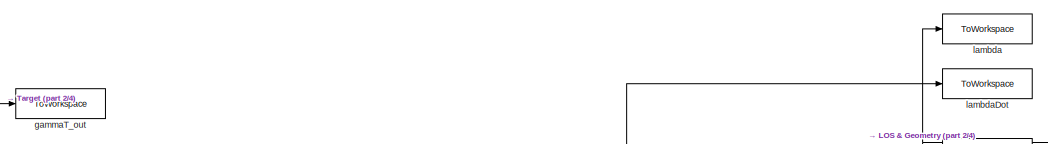
[diagram: root canvas - part 1/4, top center region]
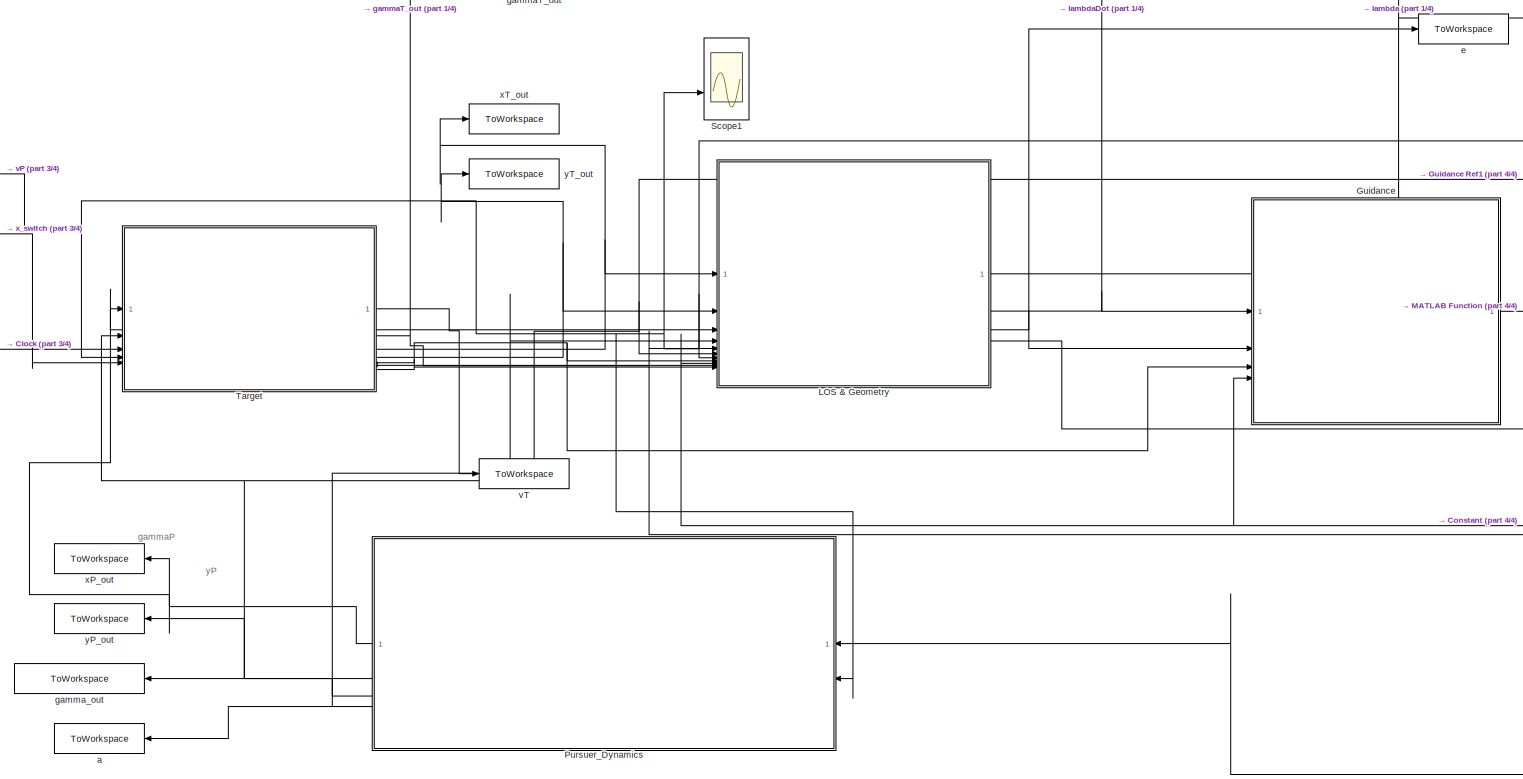
[diagram: root canvas - part 2/4, center side, full height]
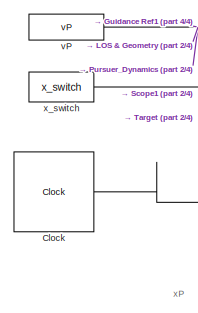
[diagram: root canvas - part 3/4, middle left region]
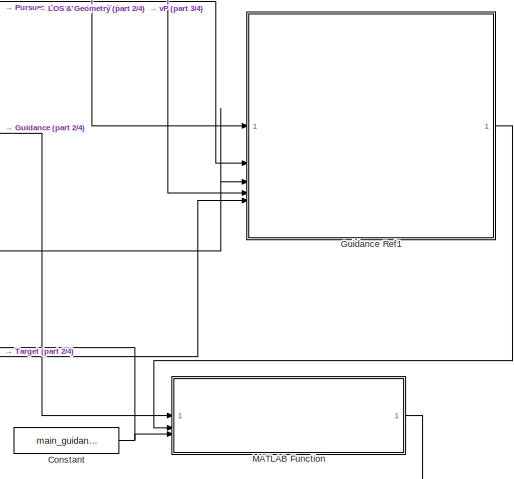
[diagram: root canvas - part 4/4, middle right region]
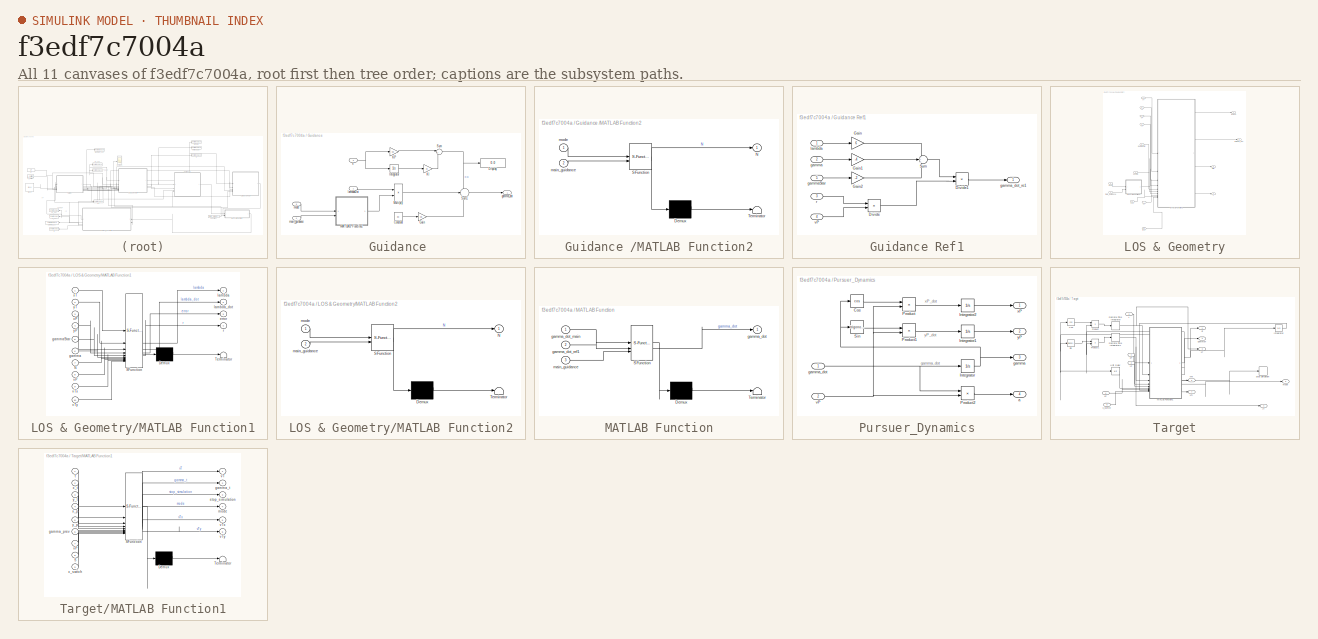
[diagram: thumbnail index - all 11 canvases of the model, root first then tree order]
MODEL slx_f3edf7c7004a
KIND model
CONFIG AbsTol = auto
CONFIG EnableMultiTasking = off
CONFIG FixedStep = 0.01
CONFIG MaxStep = auto
CONFIG MinStep = auto
CONFIG RelTol = 1e-3
CONFIG SampleTimeConstraint = Unconstrained
CONFIG SolverName = ode4
CONFIG StartTime = 0.0
CONFIG StopTime = tf
BLOCK [Clock] Clock
  Decimation = tf
  DisplayTime = on
BLOCK [Constant] Constant
  Value = main_guidance
BLOCK [SubSystem] Guidance 
BLOCK [Constant] Guidance /Constant
  Value = e0
BLOCK [Display] Guidance /Display
  Decimation = 1
BLOCK [Gain] Guidance /Gain
  Gain = Kp
BLOCK [Integrator] Guidance /Integrator
  InitialCondition = e0
BLOCK [Gain] Guidance /KI
  Gain = Ki
BLOCK [Gain] Guidance /KP
  Gain = Kp
BLOCK [SubSystem] Guidance /MATLAB Function2
  ErrorFcn = Stateflow.Translate.translate
  PermitHierarchicalResolution = ExplicitOnly
  SFBlockType = MATLAB Function
  TreatAsAtomicUnit = on
BLOCK [Demux] Guidance /MATLAB Function2/ Demux 
  Outputs = 1
BLOCK [S-Function] Guidance /MATLAB Function2/ SFunction 
  EnableBusSupport = on
  FunctionName = sf_sfun
  PortCounts = [2 2]
  SFcnIsStateOwnerBlock = off
  SFunctionDeploymentMode = off
  Tag = Stateflow S-Function 6
BLOCK [Terminator] Guidance /MATLAB Function2/ Terminator 
BLOCK [Outport] Guidance /MATLAB Function2/N
BLOCK [Inport] Guidance /MATLAB Function2/main_guidance
  Port = 2
BLOCK [Inport] Guidance /MATLAB Function2/mode
BLOCK [Product] Guidance /Multiply
BLOCK [Sum] Guidance /Sum
  Inputs = |++
BLOCK [Sum] Guidance /Sum1
  Inputs = +|+|-
BLOCK [Inport] Guidance /e
  Port = 2
BLOCK [Outport] Guidance /gamma_dot
BLOCK [Inport] Guidance /lambdaDot
BLOCK [Inport] Guidance /main_guidance
  Port = 4
BLOCK [Inport] Guidance /mode
  Port = 3
BLOCK [SubSystem] Guidance Ref1
BLOCK [Product] Guidance Ref1/Divide
  Inputs = */
BLOCK [Product] Guidance Ref1/Divide1
  Inputs = */
BLOCK [Gain] Guidance Ref1/Gain
  Gain = 6
BLOCK [Gain] Guidance Ref1/Gain1
  Gain = -4
BLOCK [Gain] Guidance Ref1/Gain2
  Gain = -2
BLOCK [Sum] Guidance Ref1/Sum
  Inputs = +++
BLOCK [Inport] Guidance Ref1/gamma
  Port = 2
BLOCK [Inport] Guidance Ref1/gammaStar
  Port = 5
BLOCK [Outport] Guidance Ref1/gamma_dot_re1
BLOCK [Inport] Guidance Ref1/lambda
BLOCK [Inport] Guidance Ref1/r
  Port = 3
BLOCK [Inport] Guidance Ref1/vP
  Port = 4
BLOCK [SubSystem] LOS & Geometry
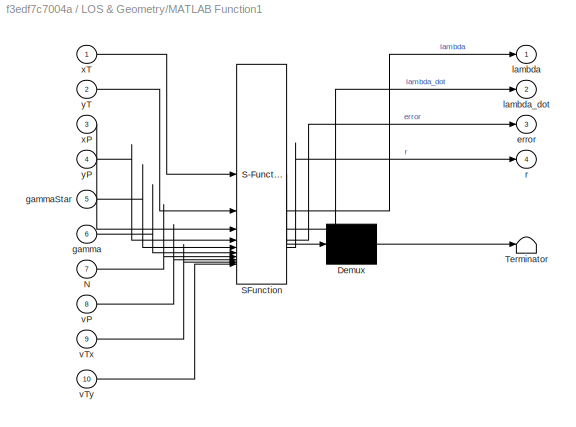
BLOCK [SubSystem] LOS & Geometry/MATLAB Function1
  ErrorFcn = Stateflow.Translate.translate
  PermitHierarchicalResolution = ExplicitOnly
  SFBlockType = MATLAB Function
  TreatAsAtomicUnit = on
BLOCK [Demux] LOS & Geometry/MATLAB Function1/ Demux 
  Outputs = 1
BLOCK [S-Function] LOS & Geometry/MATLAB Function1/ SFunction 
  EnableBusSupport = on
  FunctionName = sf_sfun
  PortCounts = [10 5]
  SFcnIsStateOwnerBlock = off
  SFunctionDeploymentMode = off
  Tag = Stateflow S-Function 1
BLOCK [Terminator] LOS & Geometry/MATLAB Function1/ Terminator 
BLOCK [Inport] LOS & Geometry/MATLAB Function1/N
  Port = 7
BLOCK [Outport] LOS & Geometry/MATLAB Function1/error
  Port = 3
BLOCK [Inport] LOS & Geometry/MATLAB Function1/gamma
  Port = 6
BLOCK [Inport] LOS & Geometry/MATLAB Function1/gammaStar
  Port = 5
BLOCK [Outport] LOS & Geometry/MATLAB Function1/lambda
BLOCK [Outport] LOS & Geometry/MATLAB Function1/lambda_dot
  Port = 2
BLOCK [Outport] LOS & Geometry/MATLAB Function1/r
  Port = 4
BLOCK [Inport] LOS & Geometry/MATLAB Function1/vP
  Port = 8
BLOCK [Inport] LOS & Geometry/MATLAB Function1/vTx
  Port = 9
BLOCK [Inport] LOS & Geometry/MATLAB Function1/vTy
  Port = 10
BLOCK [Inport] LOS & Geometry/MATLAB Function1/xP
  Port = 3
BLOCK [Inport] LOS & Geometry/MATLAB Function1/xT
BLOCK [Inport] LOS & Geometry/MATLAB Function1/yP
  Port = 4
BLOCK [Inport] LOS & Geometry/MATLAB Function1/yT
  Port = 2
BLOCK [SubSystem] LOS & Geometry/MATLAB Function2
  ErrorFcn = Stateflow.Translate.translate
  PermitHierarchicalResolution = ExplicitOnly
  SFBlockType = MATLAB Function
  TreatAsAtomicUnit = on
BLOCK [Demux] LOS & Geometry/MATLAB Function2/ Demux 
  Outputs = 1
BLOCK [S-Function] LOS & Geometry/MATLAB Function2/ SFunction 
  EnableBusSupport = on
  FunctionName = sf_sfun
  PortCounts = [2 2]
  SFcnIsStateOwnerBlock = off
  SFunctionDeploymentMode = off
  Tag = Stateflow S-Function 3
BLOCK [Terminator] LOS & Geometry/MATLAB Function2/ Terminator 
BLOCK [Outport] LOS & Geometry/MATLAB Function2/N
BLOCK [Inport] LOS & Geometry/MATLAB Function2/main_guidance
  Port = 2
BLOCK [Inport] LOS & Geometry/MATLAB Function2/mode
BLOCK [Outport] LOS & Geometry/error
  Port = 3
BLOCK [Inport] LOS & Geometry/gamma
  Port = 6
BLOCK [Inport] LOS & Geometry/gammaStar
  Port = 5
BLOCK [Outport] LOS & Geometry/lambda
BLOCK [Outport] LOS & Geometry/lambda_dot
  NameLocation = top
  Port = 2
BLOCK [Inport] LOS & Geometry/main_guidance
  Port = 9
BLOCK [Inport] LOS & Geometry/mode
  Port = 8
BLOCK [Outport] LOS & Geometry/r
  Port = 4
BLOCK [Inport] LOS & Geometry/vP
  Port = 7
BLOCK [Inport] LOS & Geometry/vTx
  Port = 10
BLOCK [Inport] LOS & Geometry/vTy
  Port = 11
BLOCK [Inport] LOS & Geometry/xP
  Port = 3
BLOCK [Inport] LOS & Geometry/xT
BLOCK [Inport] LOS & Geometry/yP
  Port = 4
BLOCK [Inport] LOS & Geometry/yT
  Port = 2
BLOCK [SubSystem] MATLAB Function
  ErrorFcn = Stateflow.Translate.translate
  PermitHierarchicalResolution = ExplicitOnly
  SFBlockType = MATLAB Function
  TreatAsAtomicUnit = on
BLOCK [Demux] MATLAB Function/ Demux 
  Outputs = 1
BLOCK [S-Function] MATLAB Function/ SFunction 
  EnableBusSupport = on
  FunctionName = sf_sfun
  PortCounts = [3 2]
  SFcnIsStateOwnerBlock = off
  SFunctionDeploymentMode = off
  Tag = Stateflow S-Function 4
BLOCK [Terminator] MATLAB Function/ Terminator 
BLOCK [Outport] MATLAB Function/gamma_dot
BLOCK [Inport] MATLAB Function/gamma_dot_main
BLOCK [Inport] MATLAB Function/gamma_dot_ref1
  Port = 2
BLOCK [Inport] MATLAB Function/main_guidance
  Port = 3
BLOCK [SubSystem] Pursuer_Dynamics
BLOCK [Trigonometry] Pursuer_Dynamics/Cos
  Operator = cos
BLOCK [Integrator] Pursuer_Dynamics/Integrator
  InitialCondition = gamma0
BLOCK [Integrator] Pursuer_Dynamics/Integrator1
  InitialCondition = yP_initial
BLOCK [Integrator] Pursuer_Dynamics/Integrator2
  InitialCondition = xP_initial
BLOCK [Product] Pursuer_Dynamics/Product
BLOCK [Product] Pursuer_Dynamics/Product1
BLOCK [Product] Pursuer_Dynamics/Product2
BLOCK [Trigonometry] Pursuer_Dynamics/Sin
BLOCK [Outport] Pursuer_Dynamics/a
  Port = 4
BLOCK [Outport] Pursuer_Dynamics/gamma
  Port = 3
BLOCK [Inport] Pursuer_Dynamics/gamma_dot
BLOCK [Inport] Pursuer_Dynamics/vP
  Port = 2
BLOCK [Outport] Pursuer_Dynamics/xP
BLOCK [Outport] Pursuer_Dynamics/yP
  Port = 2
BLOCK [Scope] Scope1
  Floating = off
  NumInputPorts = 2
  ScopeSpecificationString = Simulink.scopes.TimeScopeBlockCfg('CurrentConfiguration', extmgr.ConfigurationSet(extmgr.Configuration('Core','General UI',true),extmgr.Configuration('Core','Source UI',true),extmgr.Configuration('Sources','WiredSimulink',true,'DataLoggingVariableName','ScopeData1'),extmgr.Configuration('Visuals','Time Domain',true,'SerializedDisplays',{struct('MinYLimReal','1.76168','MaxYLimReal','27.58204','YLab...<+1467ch>
BLOCK [SubSystem] Target
BLOCK [Trigonometry] Target/Cos
  Operator = cos
BLOCK [DiscreteIntegrator] Target/Discrete-Time Integrator
  ICPrevOutput = DiscIntNeverNeededParam
  ICPrevScaledInput = DiscIntNeverNeededParam
  InitialConditionSetting = Auto
  SampleTime = 0.01
BLOCK [DiscreteIntegrator] Target/Discrete-Time Integrator1
  ICPrevOutput = DiscIntNeverNeededParam
  ICPrevScaledInput = DiscIntNeverNeededParam
  InitialCondition = 100
  InitialConditionSetting = Auto
  SampleTime = 0.01
BLOCK [Integrator] Target/Integrator
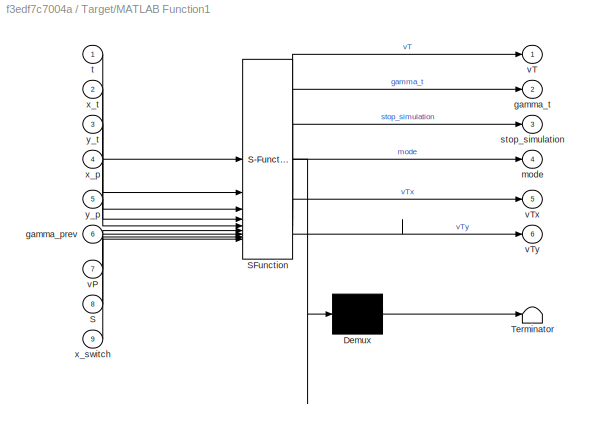
BLOCK [SubSystem] Target/MATLAB Function1
  ErrorFcn = Stateflow.Translate.translate
  PermitHierarchicalResolution = ExplicitOnly
  SFBlockType = MATLAB Function
  TreatAsAtomicUnit = on
BLOCK [Demux] Target/MATLAB Function1/ Demux 
  Outputs = 1
BLOCK [S-Function] Target/MATLAB Function1/ SFunction 
  EnableBusSupport = on
  FunctionName = sf_sfun
  PortCounts = [9 7]
  SFcnIsStateOwnerBlock = off
  SFunctionDeploymentMode = off
  Tag = Stateflow S-Function 5
BLOCK [Terminator] Target/MATLAB Function1/ Terminator 
BLOCK [Inport] Target/MATLAB Function1/S
  Port = 8
BLOCK [Inport] Target/MATLAB Function1/gamma_prev
  Port = 6
BLOCK [Outport] Target/MATLAB Function1/gamma_t
  Port = 2
BLOCK [Outport] Target/MATLAB Function1/mode
  Port = 4
BLOCK [Outport] Target/MATLAB Function1/stop_simulation
  Port = 3
BLOCK [Inport] Target/MATLAB Function1/t
BLOCK [Inport] Target/MATLAB Function1/vP
  Port = 7
BLOCK [Outport] Target/MATLAB Function1/vT
BLOCK [Outport] Target/MATLAB Function1/vTx
  Port = 5
BLOCK [Outport] Target/MATLAB Function1/vTy
  Port = 6
BLOCK [Inport] Target/MATLAB Function1/x_p
  Port = 4
BLOCK [Inport] Target/MATLAB Function1/x_switch
  Port = 9
BLOCK [Inport] Target/MATLAB Function1/x_t
  Port = 2
BLOCK [Inport] Target/MATLAB Function1/y_p
  Port = 5
BLOCK [Inport] Target/MATLAB Function1/y_t
  Port = 3
BLOCK [Product] Target/Product
BLOCK [Product] Target/Product1
BLOCK [Trigonometry] Target/Sin
BLOCK [Stop] Target/Stop Simulation
BLOCK [UnitDelay] Target/Unit Delay
  HasFrameUpgradeWarning = on
  SampleTime = 0.01
BLOCK [Outport] Target/Vt
BLOCK [Outport] Target/gammaT
  Port = 2
BLOCK [Outport] Target/mode
  Port = 5
BLOCK [Inport] Target/t
  Port = 3
BLOCK [Inport] Target/vP
  Port = 4
BLOCK [Outport] Target/vTx
  Port = 6
BLOCK [Outport] Target/vTy
  Port = 7
BLOCK [Inport] Target/xP
BLOCK [Outport] Target/xT
  Port = 3
BLOCK [Inport] Target/x_switch
  Port = 5
BLOCK [Inport] Target/yP
  Port = 2
BLOCK [Outport] Target/yT
  Port = 4
BLOCK [ToWorkspace] a
  FixptAsFi = on
  MaxDataPoints = inf
  SampleTime = -1
  Save2DSignal = 2-D array (concatenate along first dimension)
  VariableName = a_out
BLOCK [ToWorkspace] e
  FixptAsFi = on
  MaxDataPoints = inf
  SampleTime = -1
  Save2DSignal = 2-D array (concatenate along first dimension)
  VariableName = e_out
BLOCK [ToWorkspace] gammaT_out
  FixptAsFi = on
  MaxDataPoints = inf
  SampleTime = -1
  Save2DSignal = 2-D array (concatenate along first dimension)
  VariableName = gammaT_out
BLOCK [ToWorkspace] gamma_out
  FixptAsFi = on
  MaxDataPoints = inf
  SampleTime = -1
  Save2DSignal = 2-D array (concatenate along first dimension)
  VariableName = gamma_out
BLOCK [ToWorkspace] lambda
  FixptAsFi = on
  MaxDataPoints = inf
  SampleTime = -1
  Save2DSignal = 2-D array (concatenate along first dimension)
  VariableName = lambda
BLOCK [ToWorkspace] lambdaDot
  FixptAsFi = on
  MaxDataPoints = inf
  SampleTime = -1
  Save2DSignal = 2-D array (concatenate along first dimension)
  VariableName = lambdaDot
BLOCK [Constant] vP
  Value = vP
BLOCK [ToWorkspace] vT
  FixptAsFi = on
  MaxDataPoints = inf
  SampleTime = -1
  Save2DSignal = 2-D array (concatenate along first dimension)
  VariableName = vT_out
BLOCK [ToWorkspace] xP_out
  FixptAsFi = on
  MaxDataPoints = inf
  SampleTime = -1
  Save2DSignal = 2-D array (concatenate along first dimension)
  VariableName = xP_out
BLOCK [ToWorkspace] xT_out
  FixptAsFi = on
  MaxDataPoints = inf
  SampleTime = -1
  Save2DSignal = 2-D array (concatenate along first dimension)
  VariableName = xT_out
BLOCK [Constant] x_switch
  Value = x_switch
BLOCK [ToWorkspace] yP_out
  FixptAsFi = on
  MaxDataPoints = inf
  SampleTime = -1
  Save2DSignal = 2-D array (concatenate along first dimension)
  VariableName = yP_out
BLOCK [ToWorkspace] yT_out
  FixptAsFi = on
  MaxDataPoints = inf
  SampleTime = -1
  Save2DSignal = 2-D array (concatenate along first dimension)
  VariableName = yT_out
ANNOTATION (root): gammaP
ANNOTATION (root): xP
ANNOTATION (root): yP
ANNOTATION Pursuer_Dynamics: gamma_dot
ANNOTATION Pursuer_Dynamics: xP_dot
ANNOTATION Pursuer_Dynamics: yP_dot
LINE Clock:1 -> Target:3
NET Constant:1 -> Guidance :4, LOS & Geometry:9, MATLAB Function:3
LINE Guidance /Constant:1 -> Guidance /Gain:1
LINE Guidance /Gain:1 -> Guidance /Sum1:3
LINE Guidance /Integrator:1 -> Guidance /KI:1
LINE Guidance /KI:1 -> Guidance /Sum:2
LINE Guidance /KP:1 -> Guidance /Sum:1
LINE Guidance /MATLAB Function2:1 -> Guidance /Multiply:2
LINE Guidance /Multiply:1 -> Guidance /Sum1:2
LINE Guidance /Sum1:1 -> Guidance /gamma_dot:1
NET Guidance /Sum:1 -> Guidance /Display:1, Guidance /Sum1:1
NET Guidance /e:1 -> Guidance /Integrator:1, Guidance /KP:1
LINE Guidance /lambdaDot:1 -> Guidance /Multiply:1
LINE Guidance /main_guidance:1 -> Guidance /MATLAB Function2:2
LINE Guidance /mode:1 -> Guidance /MATLAB Function2:1
LINE Guidance :1 -> MATLAB Function:1
LINE Guidance Ref1/Divide1:1 -> Guidance Ref1/gamma_dot_re1:1
LINE Guidance Ref1/Divide:1 -> Guidance Ref1/Divide1:2
LINE Guidance Ref1/Gain1:1 -> Guidance Ref1/Sum:2
LINE Guidance Ref1/Gain2:1 -> Guidance Ref1/Sum:3
LINE Guidance Ref1/Gain:1 -> Guidance Ref1/Sum:1
LINE Guidance Ref1/Sum:1 -> Guidance Ref1/Divide1:1
LINE Guidance Ref1/gamma:1 -> Guidance Ref1/Gain1:1
LINE Guidance Ref1/gammaStar:1 -> Guidance Ref1/Gain2:1
LINE Guidance Ref1/lambda:1 -> Guidance Ref1/Gain:1
LINE Guidance Ref1/r:1 -> Guidance Ref1/Divide:1
LINE Guidance Ref1/vP:1 -> Guidance Ref1/Divide:2
LINE Guidance Ref1:1 -> MATLAB Function:2
LINE LOS & Geometry/MATLAB Function1:1 -> LOS & Geometry/lambda:1
LINE LOS & Geometry/MATLAB Function1:2 -> LOS & Geometry/lambda_dot:1
LINE LOS & Geometry/MATLAB Function1:3 -> LOS & Geometry/error:1
LINE LOS & Geometry/MATLAB Function1:4 -> LOS & Geometry/r:1
LINE LOS & Geometry/MATLAB Function2:1 -> LOS & Geometry/MATLAB Function1:7
LINE LOS & Geometry/gamma:1 -> LOS & Geometry/MATLAB Function1:6
LINE LOS & Geometry/gammaStar:1 -> LOS & Geometry/MATLAB Function1:5
LINE LOS & Geometry/main_guidance:1 -> LOS & Geometry/MATLAB Function2:2
LINE LOS & Geometry/mode:1 -> LOS & Geometry/MATLAB Function2:1
LINE LOS & Geometry/vP:1 -> LOS & Geometry/MATLAB Function1:8
LINE LOS & Geometry/vTx:1 -> LOS & Geometry/MATLAB Function1:9
LINE LOS & Geometry/vTy:1 -> LOS & Geometry/MATLAB Function1:10
LINE LOS & Geometry/xP:1 -> LOS & Geometry/MATLAB Function1:3
LINE LOS & Geometry/xT:1 -> LOS & Geometry/MATLAB Function1:1
LINE LOS & Geometry/yP:1 -> LOS & Geometry/MATLAB Function1:4
LINE LOS & Geometry/yT:1 -> LOS & Geometry/MATLAB Function1:2
NET LOS & Geometry:1 -> Guidance Ref1:1, lambda:1
NET LOS & Geometry:2 -> Guidance :1, lambdaDot:1
NET LOS & Geometry:3 -> Guidance :2, e:1
LINE LOS & Geometry:4 -> Guidance Ref1:3
LINE MATLAB Function:1 -> Pursuer_Dynamics:1
LINE Pursuer_Dynamics/Cos:1 -> Pursuer_Dynamics/Product:1
LINE Pursuer_Dynamics/Integrator1:1 -> Pursuer_Dynamics/yP:1
LINE Pursuer_Dynamics/Integrator2:1 -> Pursuer_Dynamics/xP:1
NET Pursuer_Dynamics/Integrator:1 -> Pursuer_Dynamics/Cos:1, Pursuer_Dynamics/Sin:1, Pursuer_Dynamics/gamma:1
LINE Pursuer_Dynamics/Product1:1 -> Pursuer_Dynamics/Integrator1:1
LINE Pursuer_Dynamics/Product2:1 -> Pursuer_Dynamics/a:1
LINE Pursuer_Dynamics/Product:1 -> Pursuer_Dynamics/Integrator2:1
LINE Pursuer_Dynamics/Sin:1 -> Pursuer_Dynamics/Product1:1
NET Pursuer_Dynamics/gamma_dot:1 -> Pursuer_Dynamics/Integrator:1, Pursuer_Dynamics/Product2:1
NET Pursuer_Dynamics/vP:1 -> Pursuer_Dynamics/Product1:2, Pursuer_Dynamics/Product2:2, Pursuer_Dynamics/Product:2
NET Pursuer_Dynamics:1 -> LOS & Geometry:3, Target:1, xP_out:1
NET Pursuer_Dynamics:2 -> LOS & Geometry:4, Target:2, yP_out:1
NET Pursuer_Dynamics:3 -> Guidance Ref1:2, LOS & Geometry:6, gamma_out:1
LINE Pursuer_Dynamics:4 -> a:1
LINE Target/Cos:1 -> Target/Product:1
NET Target/Discrete-Time Integrator1:1 -> Target/MATLAB Function1:3, Target/yT:1
NET Target/Discrete-Time Integrator:1 -> Target/MATLAB Function1:2, Target/xT:1
LINE Target/Integrator:1 -> Target/MATLAB Function1:8
NET Target/MATLAB Function1:1 -> Target/Integrator:1, Target/Product1:2, Target/Product:2, Target/Vt:1
NET Target/MATLAB Function1:2 -> Target/Cos:1, Target/Sin:1, Target/Unit Delay:1, Target/gammaT:1
LINE Target/MATLAB Function1:3 -> Target/Stop Simulation:1
LINE Target/MATLAB Function1:4 -> Target/mode:1
LINE Target/MATLAB Function1:5 -> Target/vTx:1
LINE Target/MATLAB Function1:6 -> Target/vTy:1
LINE Target/Product1:1 -> Target/Discrete-Time Integrator1:1
LINE Target/Product:1 -> Target/Discrete-Time Integrator:1
LINE Target/Sin:1 -> Target/Product1:1
LINE Target/Unit Delay:1 -> Target/MATLAB Function1:6
LINE Target/t:1 -> Target/MATLAB Function1:1
LINE Target/vP:1 -> Target/MATLAB Function1:7
LINE Target/xP:1 -> Target/MATLAB Function1:4
LINE Target/x_switch:1 -> Target/MATLAB Function1:9
LINE Target/yP:1 -> Target/MATLAB Function1:5
LINE Target:1 -> vT:1
NET Target:2 -> Guidance Ref1:5, LOS & Geometry:5, gammaT_out:1
NET Target:3 -> LOS & Geometry:1, xT_out:1
NET Target:4 -> LOS & Geometry:2, yT_out:1
NET Target:5 -> Guidance :3, LOS & Geometry:8
LINE Target:6 -> LOS & Geometry:10
LINE Target:7 -> LOS & Geometry:11
NET vP:1 -> Guidance Ref1:4, LOS & Geometry:7, Pursuer_Dynamics:2, Scope1:2, Target:4
LINE x_switch:1 -> Target:5
note: NET lines group one-source signal fan-out (src -> all destinations, sorted); 1:1 wires keep LINE
CHART Guidance /MATLAB Function2 states=1 transitions=1
  STATE_LABEL 'eML_blk_kernel()'
  STATE_LABEL 'SCRIPT:\nfunction N = fcn(mode, main_guidance)\n\n    if main_guidance == 0\n        N=3\n    else\n        if mode == 1\n            N = 2\n        else\n            N = 1.25\n        end\n    end\nend\n\n'
CHART LOS & Geometry/MATLAB Function1 states=1 transitions=1
  STATE_LABEL 'eML_blk_kernel()'
  STATE_LABEL 'SCRIPT:\nfunction [ lambda,  lambda_dot, error, r] = ref9(xT, yT, xP, yP, gammaStar, gamma, N, vP, vTx, vTy)\n    \n\n    %% 1) Relative position \n    dx = xT - xP;\n    dy = yT - yP;\n\n    r = hypot(dx, dy);\n    %% 2) LOS angle \n    lambda = atan2(dy, dx); \n    % force into [0,2*pi)\n    lambda = mod(lambda, 2*pi);\n\n    % 5) Pursuer Velecities\n    vPx = cos(gamma)*vP;\n    vPy = sin(gamma)*vP;\n\n    % lam...<+313ch>'
CHART LOS & Geometry/MATLAB Function2 states=1 transitions=1
  STATE_LABEL 'eML_blk_kernel()'
  STATE_LABEL 'SCRIPT:\nfunction N = fcn(mode, main_guidance)\n\n    if main_guidance == 0\n        N=3\n    else\n        if mode == 1\n            N = 2\n        else\n            N = 1.25\n        end\n    end\nend\n\n'
CHART MATLAB Function states=1 transitions=1
  STATE_LABEL 'eML_blk_kernel()'
  STATE_LABEL "SCRIPT:\nfunction gamma_dot = fcn(gamma_dot_main, gamma_dot_ref1, main_guidance)\n    \n    if main_guidance== 0\n        gamma_dot = gamma_dot_ref1;\n        disp('Reference 1 guidance law is engaged')\n    else \n        gamma_dot = gamma_dot_main;\n        disp( 'main guidance law is engaged')\n    end\nend\n\n\n"
CHART Target/MATLAB Function1 states=1 transitions=1
  STATE_LABEL 'eML_blk_kernel()'
  STATE_LABEL 'SCRIPT:\nfunction [vT, gamma_t, stop_simulation, mode, vTx, vTy] = targetLogic(t, x_t, y_t, ...\n                                      x_p, y_p, gamma_prev, vP, S, x_switch)\n    % --- range to pursuer\n    r = hypot(x_t - x_p, y_t - y_p);\n    \n    % --- speed profile\n    vT = 25 * (vP / r);            % Eq.  given by OP\n    stop_simulation =0\n    if S >=x_switch\n        t\n        mode = 1 %curved\n   ...<+353ch>'
CHART  states=0 transitions=0
CHART  states=0 transitions=0
CHART  states=0 transitions=0
CHART  states=0 transitions=0
CHART  states=0 transitions=0
